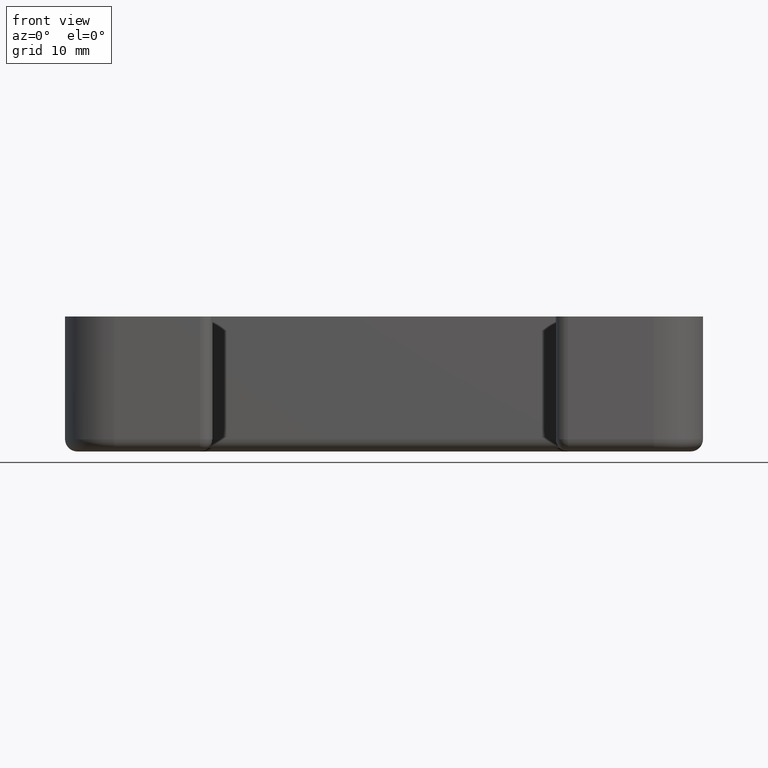
[diagram: clean part render]
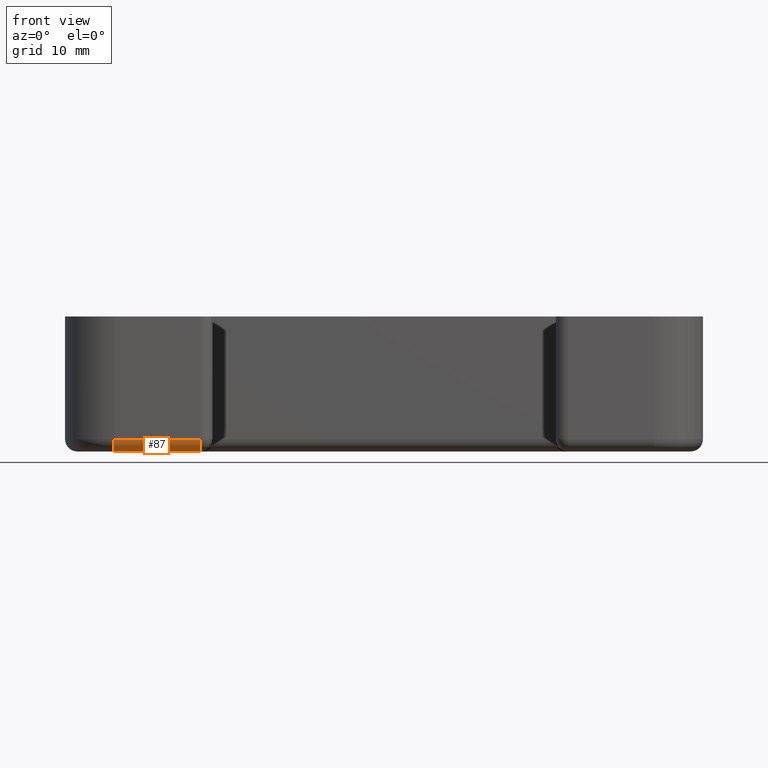
[diagram: same view with one face highlighted and labeled with its STEP entity id]
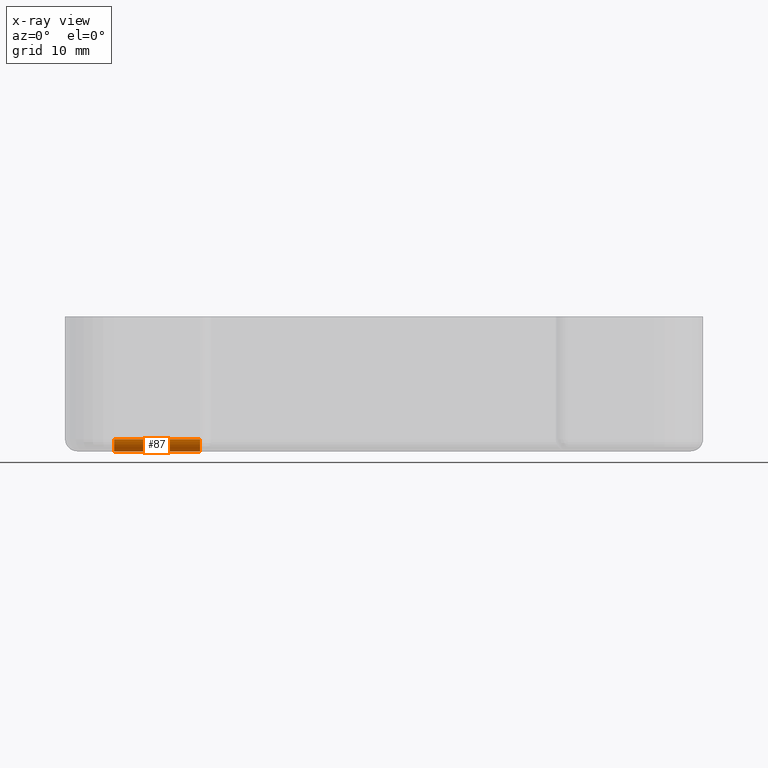
[diagram: x-ray of the same camera — body ghosted, the highlighted face saturated]
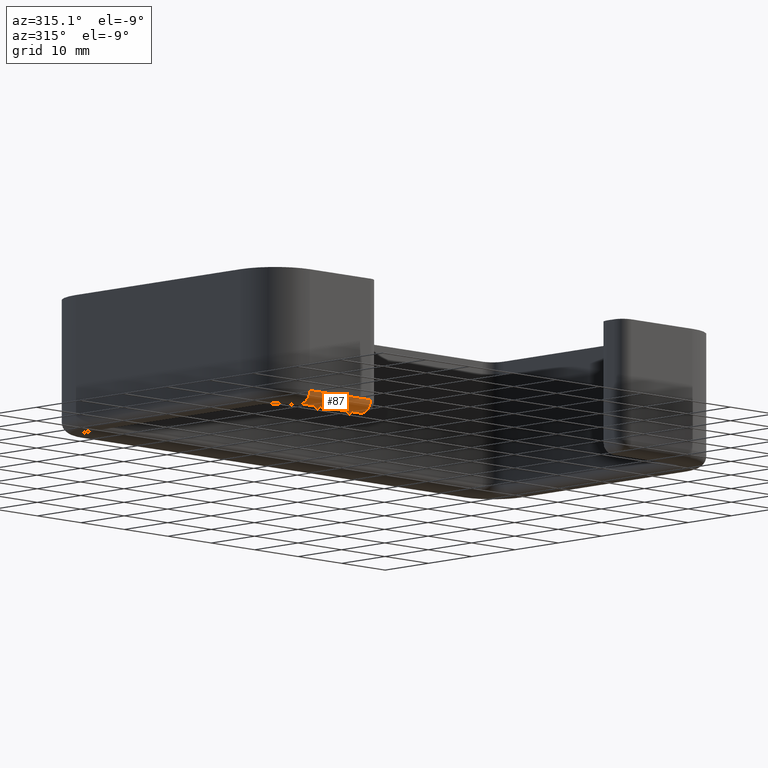
[diagram: same view with one face highlighted and labeled with its STEP entity id]
A machine part, front view. The second image highlights one B-rep face of the part: STEP entity #87.
The next image is the same camera in x-ray: the body ghosted, the highlighted face saturated — about 0% of this face is hidden behind the body in this view.
A second angle (auxiliary view) of the same face is appended — the face is thin or edge-on in the first view.
In plain terms, the highlighted cylindrical surface (edge-blend (fillet) strip) has radius 2 mm, axis along (1, -0, 0).
Its self-contained STEP definition (entity closure, byte-faithful):
#87 = ADVANCED_FACE( '', ( #172 ), #173, .T. );
#172 = FACE_OUTER_BOUND( '', #315, .T. );
#173 = CYLINDRICAL_SURFACE( '', #316, 2.00000000000000 );
#315 = EDGE_LOOP( '', ( #588, #589, #590, #591 ) );
#316 = AXIS2_PLACEMENT_3D( '', #592, #593, #594 );
#588 = ORIENTED_EDGE( '', *, *, #1099, .T. );
#589 = ORIENTED_EDGE( '', *, *, #1080, .F. );
#590 = ORIENTED_EDGE( '', *, *, #1100, .F. );
#591 = ORIENTED_EDGE( '', *, *, #1101, .F. );
#592 = CARTESIAN_POINT( '', ( -44.0000000000000, -25.0000000000000, -20.0000000000000 ) );
#593 = DIRECTION( '', ( 1.00000000000000, -4.44089209850063E-017, 0.000000000000000 ) );
#594 = DIRECTION( '', ( -4.44089209850063E-017, -1.00000000000000, 0.000000000000000 ) );
#1080 = EDGE_CURVE( '', #1311, #1329, #1330, .T. );
#1099 = EDGE_CURVE( '', #1365, #1329, #1366, .T. );
#1100 = EDGE_CURVE( '', #1367, #1311, #1368, .T. );
#1101 = EDGE_CURVE( '', #1365, #1367, #1369, .F. );
#1311 = VERTEX_POINT( '', #1637 );
#1329 = VERTEX_POINT( '', #1659 );
#1330 = LINE( '', #1660, #1661 );
#1365 = VERTEX_POINT( '', #1706 );
#1366 = CIRCLE( '', #1707, 2.00000000000000 );
#1367 = VERTEX_POINT( '', #1708 );
#1368 = CIRCLE( '', #1709, 2.00000000000000 );
#1369 = LINE( '', #1710, #1711 );
#1637 = CARTESIAN_POINT( '', ( -30.0000000000000, -25.0000000000000, -22.0000000000000 ) );
#1659 = CARTESIAN_POINT( '', ( -44.0000000000000, -25.0000000000000, -22.0000000000000 ) );
#1660 = CARTESIAN_POINT( '', ( -44.0000000000000, -25.0000000000000, -22.0000000000000 ) );
#1661 = VECTOR( '', #2000, 1000.00000000000 );
#1706 = CARTESIAN_POINT( '', ( -44.0000000000000, -27.0000000000000, -20.0000000000000 ) );
#1707 = AXIS2_PLACEMENT_3D( '', #2035, #2036, #2037 );
#1708 = CARTESIAN_POINT( '', ( -30.0000000000000, -27.0000000000000, -20.0000000000000 ) );
#1709 = AXIS2_PLACEMENT_3D( '', #2038, #2039, #2040 );
#1710 = CARTESIAN_POINT( '', ( -28.0000000000000, -27.0000000000000, -20.0000000000000 ) );
#1711 = VECTOR( '', #2041, 1000.00000000000 );
#2000 = DIRECTION( '', ( -1.00000000000000, 4.44089209850063E-017, 0.000000000000000 ) );
#2035 = CARTESIAN_POINT( '', ( -44.0000000000000, -25.0000000000000, -20.0000000000000 ) );
#2036 = DIRECTION( '', ( 1.00000000000000, 0.000000000000000, 0.000000000000000 ) );
#2037 = DIRECTION( '', ( 0.000000000000000, 0.000000000000000, -1.00000000000000 ) );
#2038 = CARTESIAN_POINT( '', ( -30.0000000000000, -25.0000000000000, -20.0000000000000 ) );
#2039 = DIRECTION( '', ( 1.00000000000000, 0.000000000000000, 0.000000000000000 ) );
#2040 = DIRECTION( '', ( 0.000000000000000, 0.000000000000000, -1.00000000000000 ) );
#2041 = DIRECTION( '', ( -1.00000000000000, 4.44089209850063E-017, 0.000000000000000 ) );